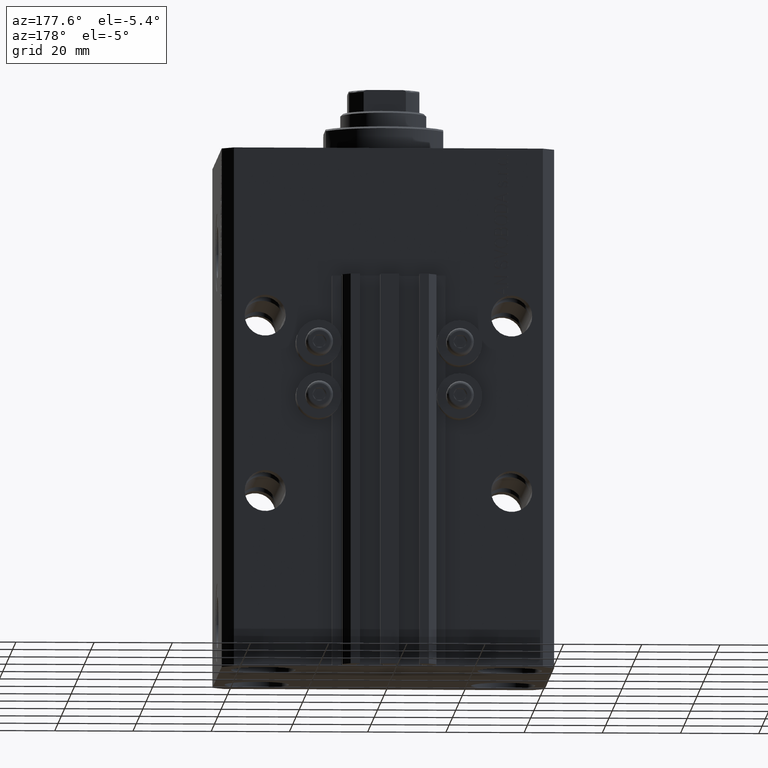
[diagram: clean part render]
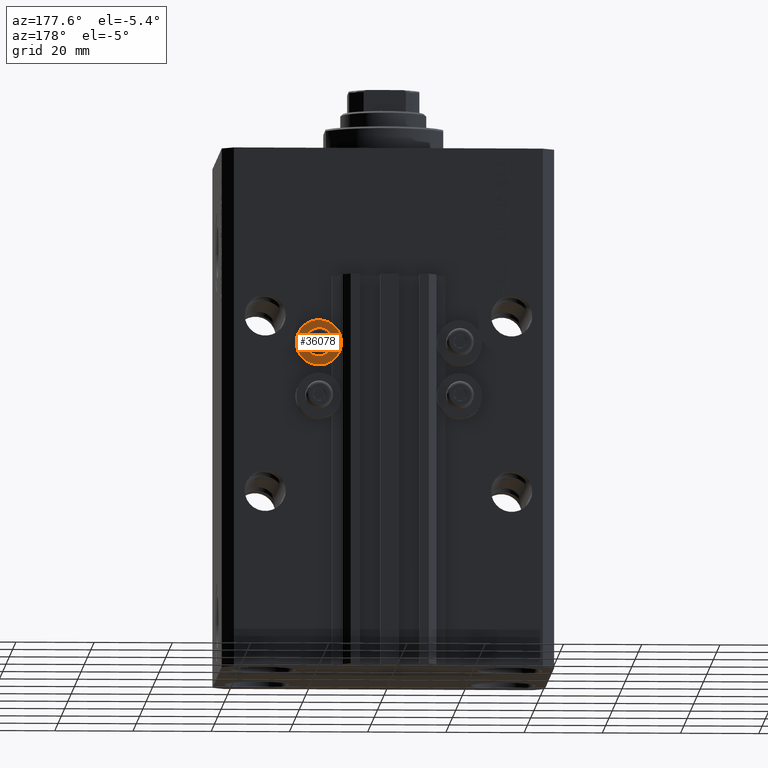
[diagram: same view with one face highlighted and labeled with its STEP entity id]
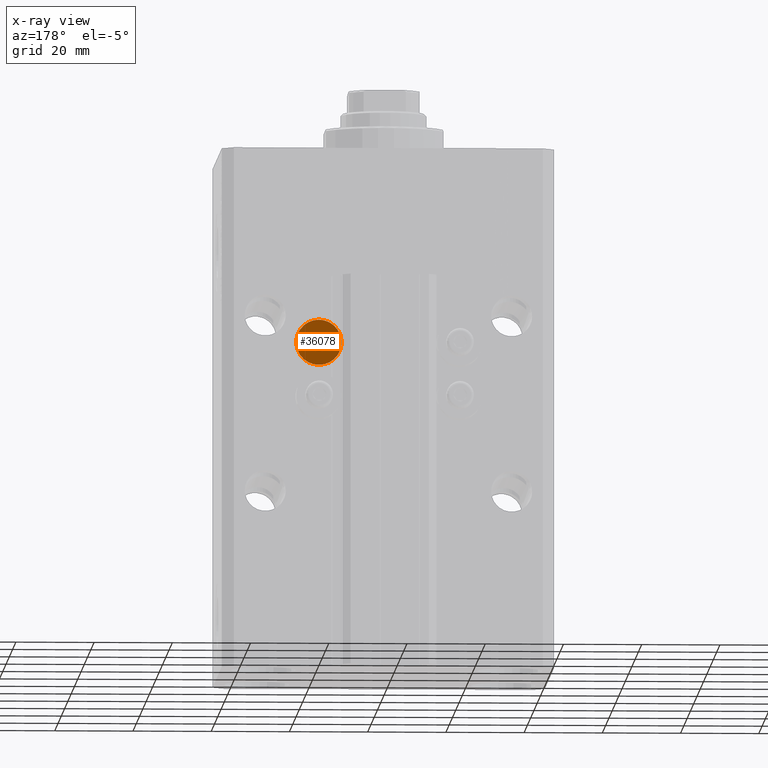
[diagram: x-ray of the same camera — body ghosted, the highlighted face saturated]
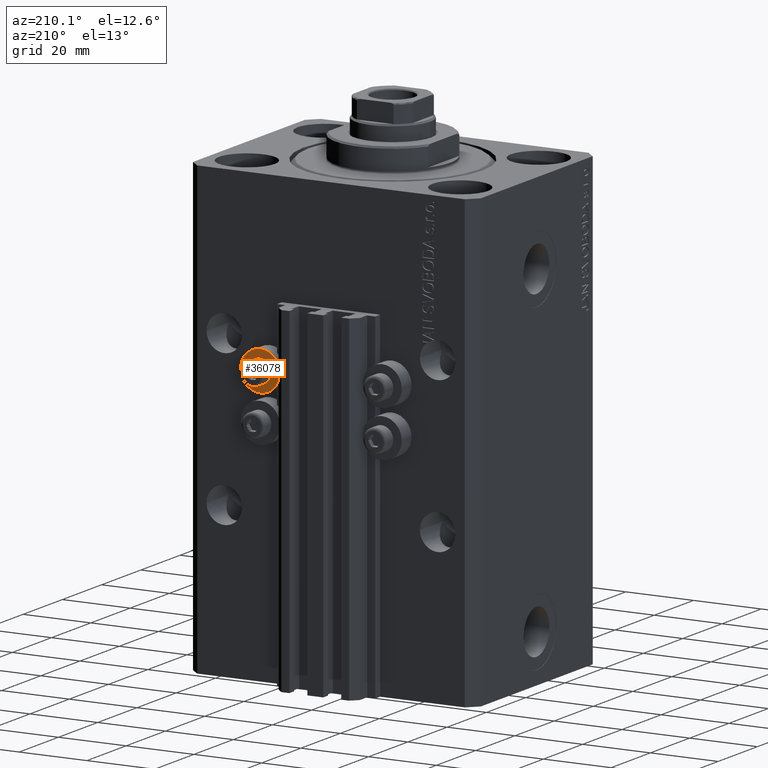
[diagram: same view with one face highlighted and labeled with its STEP entity id]
A machine part, auxiliary view. The second image highlights one B-rep face of the part: STEP entity #36078.
The next image is the same camera in x-ray: the body ghosted, the highlighted face saturated — about 0% of this face is hidden behind the body in this view.
A second angle (auxiliary view) of the same face is appended — the face is thin or edge-on in the first view.
In plain terms, the highlighted planar face has unit normal (0, -1, 0).
Its self-contained STEP definition (entity closure, byte-faithful):
#9 = CIRCLE ( 'NONE', #44012, 5.799999999999999822 ) ;
#1264 = EDGE_LOOP ( 'NONE', ( #24901, #28005 ) ) ;
#1356 = DIRECTION ( 'NONE',  ( 0.000000000000000000, -1.000000000000000000, -0.000000000000000000 ) ) ;
#1794 = DIRECTION ( 'NONE',  ( 0.000000000000000000, 0.000000000000000000, 1.000000000000000000 ) ) ;
#1900 = AXIS2_PLACEMENT_3D ( 'NONE', #31062, #27378, #1794 ) ;
#4561 = CARTESIAN_POINT ( 'NONE',  ( 18.00000000000000355, 36.49999999996099120, -48.39999999999999858 ) ) ;
#8677 = VERTEX_POINT ( 'NONE', #4561 ) ;
#8954 = VERTEX_POINT ( 'NONE', #31716 ) ;
#8975 = AXIS2_PLACEMENT_3D ( 'NONE', #29366, #10690, #10212 ) ;
#9240 = CARTESIAN_POINT ( 'NONE',  ( 12.20000000000000284, 36.49999999996099120, -50.39999999999999858 ) ) ;
#10212 = DIRECTION ( 'NONE',  ( 0.000000000000000000, 0.000000000000000000, 1.000000000000000000 ) ) ;
#10232 = ORIENTED_EDGE ( 'NONE', *, *, #14609, .T. ) ;
#10491 = CARTESIAN_POINT ( 'NONE',  ( 18.00000000000000355, 36.49999999996099120, -52.40000000000000568 ) ) ;
#10690 = DIRECTION ( 'NONE',  ( -0.000000000000000000, -1.000000000000000000, -0.000000000000000000 ) ) ;
#10781 = CIRCLE ( 'NONE', #44562, 5.799999999999999822 ) ;
#14418 = EDGE_CURVE ( 'NONE', #37013, #8677, #23875, .T. ) ;
#14609 = EDGE_CURVE ( 'NONE', #8677, #37013, #38016, .T. ) ;
#17566 = DIRECTION ( 'NONE',  ( -0.000000000000000000, -1.000000000000000000, -0.000000000000000000 ) ) ;
#18881 = EDGE_LOOP ( 'NONE', ( #10232, #39498 ) ) ;
#23875 = CIRCLE ( 'NONE', #8975, 2.000000000000001776 ) ;
#24901 = ORIENTED_EDGE ( 'NONE', *, *, #30889, .F. ) ;
#27165 = FACE_OUTER_BOUND ( 'NONE', #1264, .T. ) ;
#27378 = DIRECTION ( 'NONE',  ( -0.000000000000000000, -1.000000000000000000, -0.000000000000000000 ) ) ;
#28005 = ORIENTED_EDGE ( 'NONE', *, *, #48652, .F. ) ;
#28429 = AXIS2_PLACEMENT_3D ( 'NONE', #9240, #1356, #46614 ) ;
#29024 = CARTESIAN_POINT ( 'NONE',  ( 18.00000000000000355, 36.49999999996099120, -50.39999999999999858 ) ) ;
#29366 = CARTESIAN_POINT ( 'NONE',  ( 18.00000000000000355, 36.49999999996099120, -50.39999999999999858 ) ) ;
#30615 = PLANE ( 'NONE',  #28429 ) ;
#30889 = EDGE_CURVE ( 'NONE', #44949, #8954, #9, .T. ) ;
#31062 = CARTESIAN_POINT ( 'NONE',  ( 18.00000000000000355, 36.49999999996099120, -50.39999999999999858 ) ) ;
#31610 = CARTESIAN_POINT ( 'NONE',  ( 18.00000000000000355, 36.49999999996099120, -50.39999999999999858 ) ) ;
#31716 = CARTESIAN_POINT ( 'NONE',  ( 18.00000000000000355, 36.49999999996099120, -56.20000000000000284 ) ) ;
#32555 = DIRECTION ( 'NONE',  ( 0.000000000000000000, 0.000000000000000000, 1.000000000000000000 ) ) ;
#34560 = FACE_BOUND ( 'NONE', #18881, .T. ) ;
#36078 = ADVANCED_FACE ( 'NONE', ( #34560, #27165 ), #30615, .F. ) ;
#36894 = DIRECTION ( 'NONE',  ( -0.000000000000000000, -1.000000000000000000, -0.000000000000000000 ) ) ;
#37013 = VERTEX_POINT ( 'NONE', #10491 ) ;
#38016 = CIRCLE ( 'NONE', #1900, 2.000000000000001776 ) ;
#39498 = ORIENTED_EDGE ( 'NONE', *, *, #14418, .T. ) ;
#41720 = CARTESIAN_POINT ( 'NONE',  ( 18.00000000000000355, 36.49999999996099120, -44.60000000000000142 ) ) ;
#44012 = AXIS2_PLACEMENT_3D ( 'NONE', #31610, #17566, #32555 ) ;
#44264 = DIRECTION ( 'NONE',  ( 0.000000000000000000, 0.000000000000000000, 1.000000000000000000 ) ) ;
#44562 = AXIS2_PLACEMENT_3D ( 'NONE', #29024, #36894, #44264 ) ;
#44949 = VERTEX_POINT ( 'NONE', #41720 ) ;
#46614 = DIRECTION ( 'NONE',  ( -0.000000000000000000, 0.000000000000000000, -1.000000000000000000 ) ) ;
#48652 = EDGE_CURVE ( 'NONE', #8954, #44949, #10781, .T. ) ;